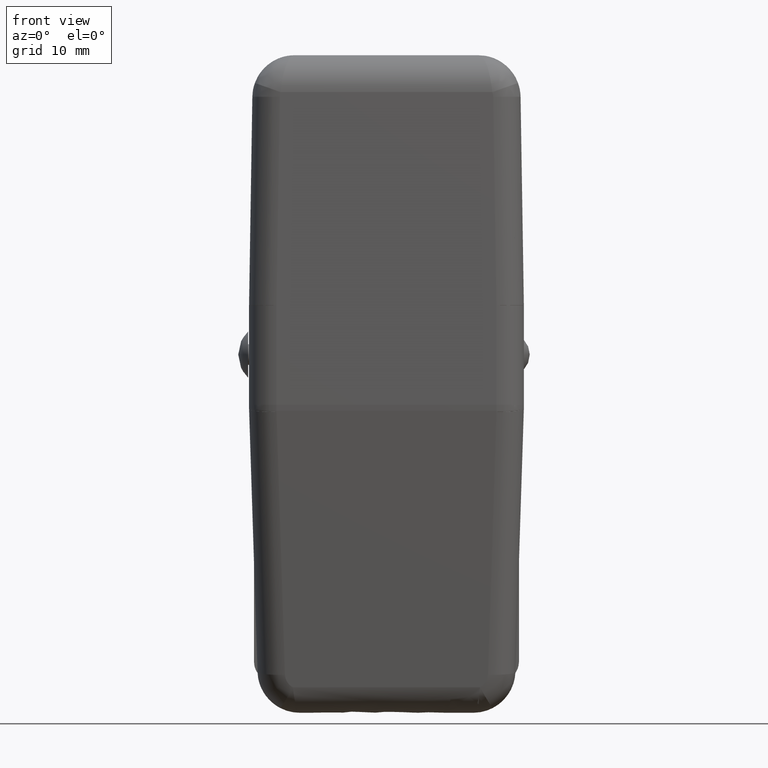
[diagram: clean part render]
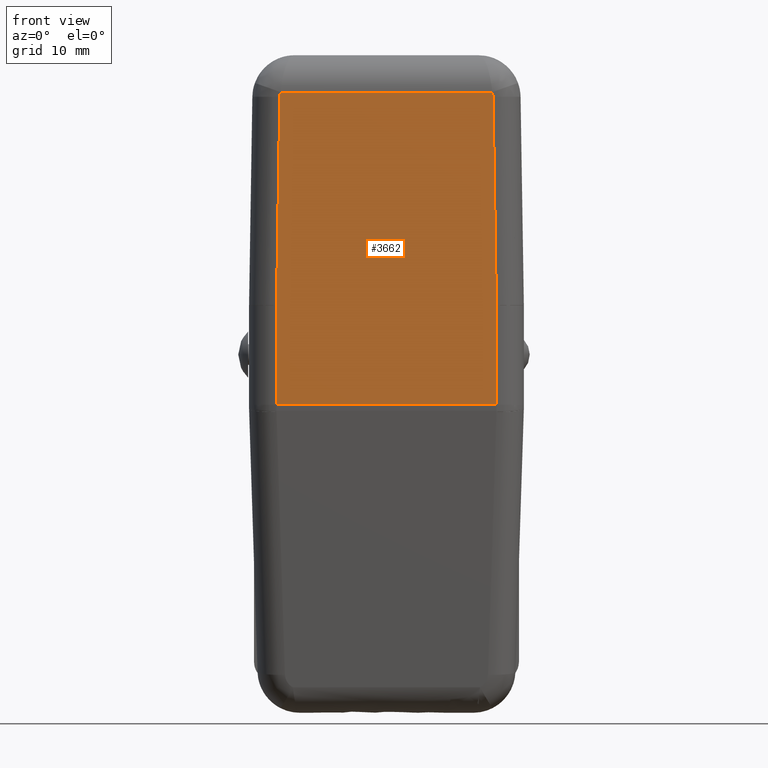
[diagram: same view with one face highlighted and labeled with its STEP entity id]
A machine part, front view. The second image highlights one B-rep face of the part: STEP entity #3662.
In plain terms, the highlighted face is a freeform B-spline surface patch.
Its self-contained STEP definition (entity closure, byte-faithful):
#3555=CARTESIAN_POINT('',(-11.200000000046501,-7.750622147044609,9.980213609414541));
#3556=VERTEX_POINT('',#3555);
#3557=CARTESIAN_POINT('',(-11.200000000046501,-7.851199134428730,-0.136991220281779));
#3558=VERTEX_POINT('',#3557);
#3559=CARTESIAN_POINT('',(-11.200000000046501,-7.750622147044609,9.980213609414541));
#3560=CARTESIAN_POINT('',(-11.200000000046501,-7.851199134428730,-0.136991220281779));
#3561=QUASI_UNIFORM_CURVE('',1,(#3559,#3560),.UNSPECIFIED.,.F.,.U.);
#3562=EDGE_CURVE('',#3556,#3558,#3561,.T.);
#3603=CARTESIAN_POINT('',(-12.318879956630949,-7.867014244671832,-1.727859210020018));
#3604=CARTESIAN_POINT('',(-12.318879956630949,-7.518765179721846,33.303087863322190));
#3605=CARTESIAN_POINT('',(12.318880557352729,-7.867014244671832,-1.727859210020018));
#3606=CARTESIAN_POINT('',(12.318880557352729,-7.518765179721846,33.303087863322190));
#3607=B_SPLINE_SURFACE_WITH_KNOTS('',1,1,((#3603,#3605),(#3604,#3606)),.UNSPECIFIED.,.F.,.F.,.U.,(2,2),(2,2),(0.0,35.032678034465782),(0.0,24.637760513983689),.UNSPECIFIED.);
#3608=CARTESIAN_POINT('',(11.199999999953461,-7.750622147044550,9.980213609420202));
#3609=VERTEX_POINT('',#3608);
#3610=CARTESIAN_POINT('',(10.865136016860740,-7.539414709708980,31.225917628357060));
#3611=VERTEX_POINT('',#3610);
#3612=CARTESIAN_POINT('',(11.199999999953461,-7.750622147044550,9.980213609420202));
#3613=CARTESIAN_POINT('',(10.865136016860740,-7.539414709708980,31.225917628357060));
#3614=QUASI_UNIFORM_CURVE('',1,(#3612,#3613),.UNSPECIFIED.,.F.,.U.);
#3615=EDGE_CURVE('',#3609,#3611,#3614,.T.);
#3616=ORIENTED_EDGE('',*,*,#3615,.T.);
#3617=CARTESIAN_POINT('',(10.775981894763380,-7.534580298457470,31.712219019307309));
#3618=VERTEX_POINT('',#3617);
#3619=CARTESIAN_POINT('',(10.865136016860740,-7.539414709708980,31.225917628357060));
#3620=CARTESIAN_POINT('',(10.862595960372269,-7.537768972968054,31.391464997959002));
#3621=CARTESIAN_POINT('',(10.832317441370490,-7.536128003962054,31.556532773250041));
#3622=CARTESIAN_POINT('',(10.775981894763380,-7.534580298457470,31.712219019307309));
#3623=B_SPLINE_CURVE_WITH_KNOTS('',3,(#3619,#3620,#3621,#3622),.UNSPECIFIED.,.F.,.U.,(4,4),(5.728920E-009,0.496704397552664),.UNSPECIFIED.);
#3624=EDGE_CURVE('',#3611,#3618,#3623,.T.);
#3625=ORIENTED_EDGE('',*,*,#3624,.T.);
#3626=CARTESIAN_POINT('',(-10.775981894750259,-7.534580298457330,31.712219019321559));
#3627=VERTEX_POINT('',#3626);
#3628=CARTESIAN_POINT('',(10.775981894763380,-7.534580298457470,31.712219019307309));
#3629=CARTESIAN_POINT('',(-10.775981894750259,-7.534580298457330,31.712219019321559));
#3630=QUASI_UNIFORM_CURVE('',1,(#3628,#3629),.UNSPECIFIED.,.F.,.U.);
#3631=EDGE_CURVE('',#3618,#3627,#3630,.T.);
#3632=ORIENTED_EDGE('',*,*,#3631,.T.);
#3633=CARTESIAN_POINT('',(-10.865136016848300,-7.539414709708780,31.225917628376859));
#3634=VERTEX_POINT('',#3633);
#3635=CARTESIAN_POINT('',(-10.775981894750259,-7.534580298457330,31.712219019321559));
#3636=CARTESIAN_POINT('',(-10.832314660516589,-7.536128004593846,31.556532709699361));
#3637=CARTESIAN_POINT('',(-10.862599008328900,-7.537768971693949,31.391465126127301));
#3638=CARTESIAN_POINT('',(-10.865136016848300,-7.539414709708780,31.225917628376859));
#3639=B_SPLINE_CURVE_WITH_KNOTS('',3,(#3635,#3636,#3637,#3638),.UNSPECIFIED.,.F.,.U.,(4,4),(5.728894E-009,0.496704397547347),.UNSPECIFIED.);
#3640=EDGE_CURVE('',#3627,#3634,#3639,.T.);
#3641=ORIENTED_EDGE('',*,*,#3640,.T.);
#3642=CARTESIAN_POINT('',(-10.865136016848300,-7.539414709708780,31.225917628376859));
#3643=CARTESIAN_POINT('',(-11.200000000046501,-7.750622147044609,9.980213609414541));
#3644=QUASI_UNIFORM_CURVE('',1,(#3642,#3643),.UNSPECIFIED.,.F.,.U.);
#3645=EDGE_CURVE('',#3634,#3556,#3644,.T.);
#3646=ORIENTED_EDGE('',*,*,#3645,.T.);
#3647=ORIENTED_EDGE('',*,*,#3562,.T.);
#3648=CARTESIAN_POINT('',(11.199999999953461,-7.851199134428730,-0.136991220281779));
#3649=VERTEX_POINT('',#3648);
#3650=CARTESIAN_POINT('',(-11.200000000046501,-7.851199134428730,-0.136991220281779));
#3651=CARTESIAN_POINT('',(11.199999999953461,-7.851199134428730,-0.136991220281779));
#3652=QUASI_UNIFORM_CURVE('',1,(#3650,#3651),.UNSPECIFIED.,.F.,.U.);
#3653=EDGE_CURVE('',#3558,#3649,#3652,.T.);
#3654=ORIENTED_EDGE('',*,*,#3653,.T.);
#3655=CARTESIAN_POINT('',(11.199999999953461,-7.851199134428730,-0.136991220281779));
#3656=CARTESIAN_POINT('',(11.199999999953461,-7.750622147044550,9.980213609420202));
#3657=QUASI_UNIFORM_CURVE('',1,(#3655,#3656),.UNSPECIFIED.,.F.,.U.);
#3658=EDGE_CURVE('',#3649,#3609,#3657,.T.);
#3659=ORIENTED_EDGE('',*,*,#3658,.T.);
#3660=EDGE_LOOP('',(#3616,#3625,#3632,#3641,#3646,#3647,#3654,#3659));
#3661=FACE_OUTER_BOUND('',#3660,.T.);
#3662=ADVANCED_FACE('',(#3661),#3607,.F.);